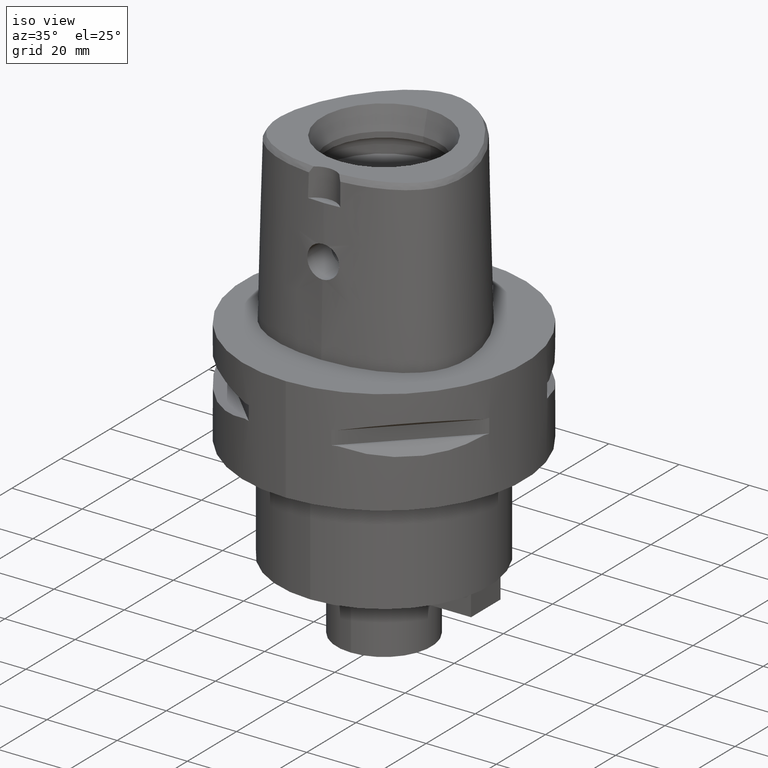
[diagram: clean part render]
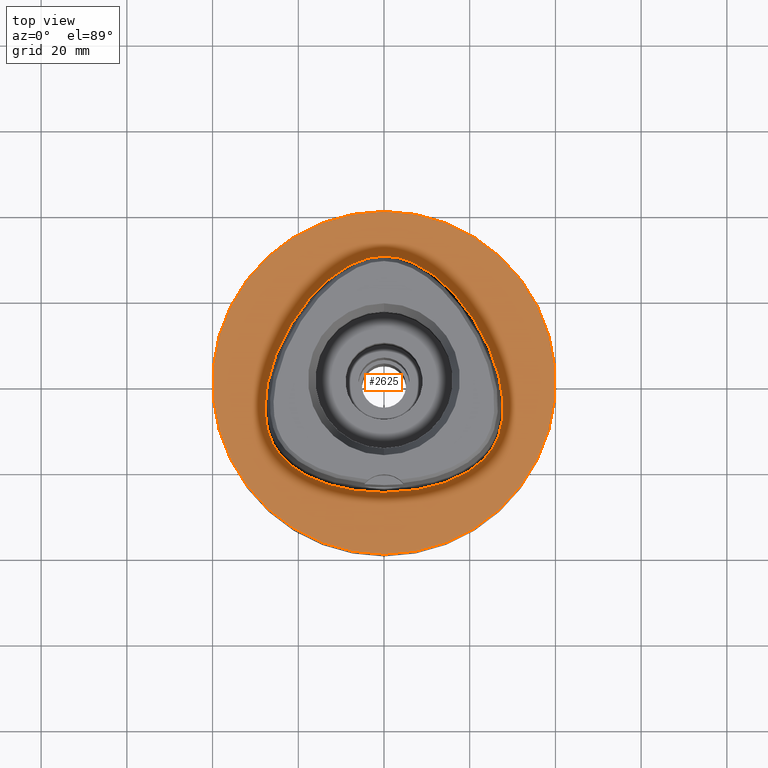
[diagram: tour spotlight — one face highlighted and labeled with its STEP entity id]
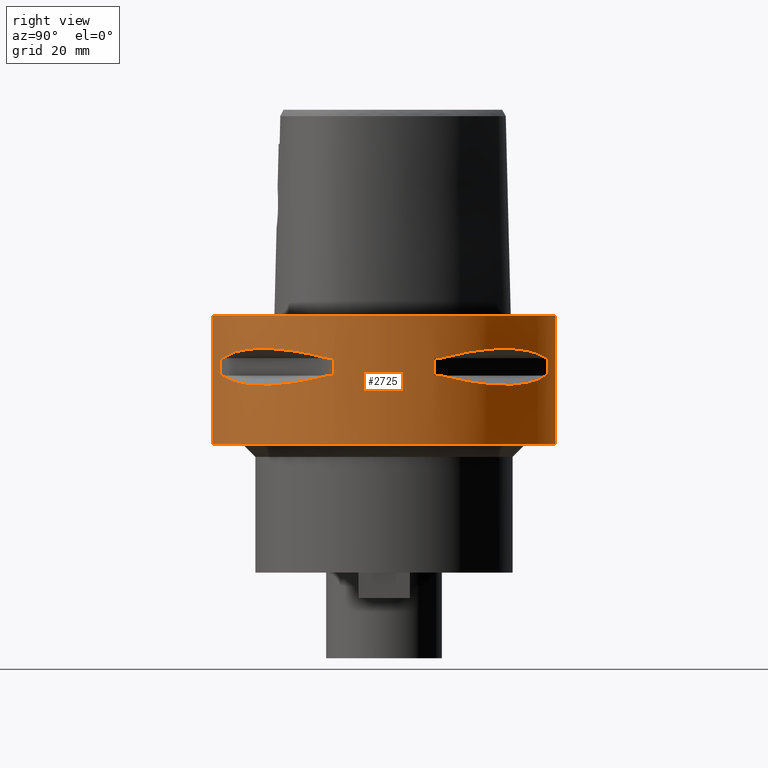
[diagram: tour spotlight — one face highlighted and labeled with its STEP entity id]
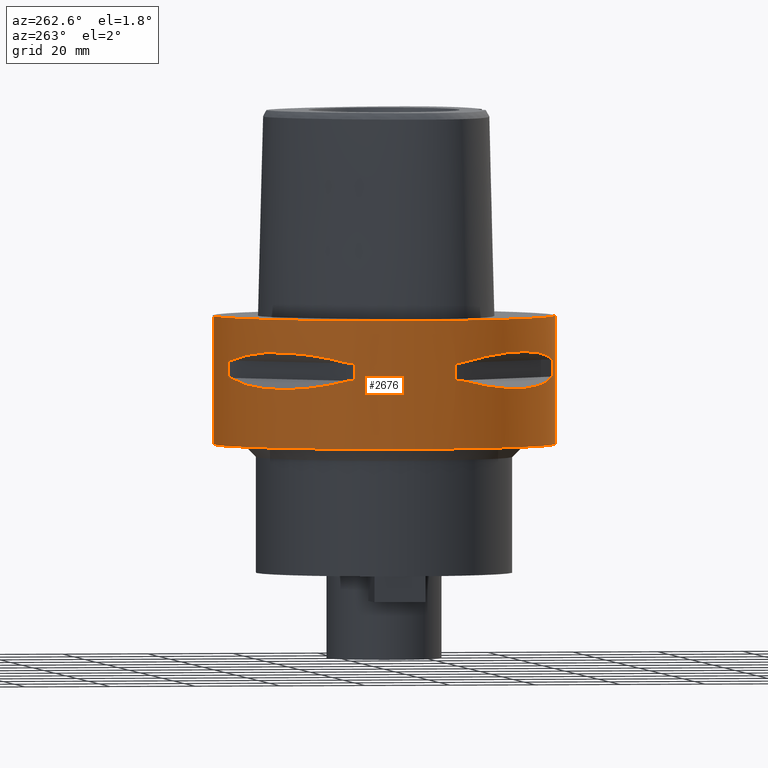
[diagram: tour spotlight — one face highlighted and labeled with its STEP entity id]
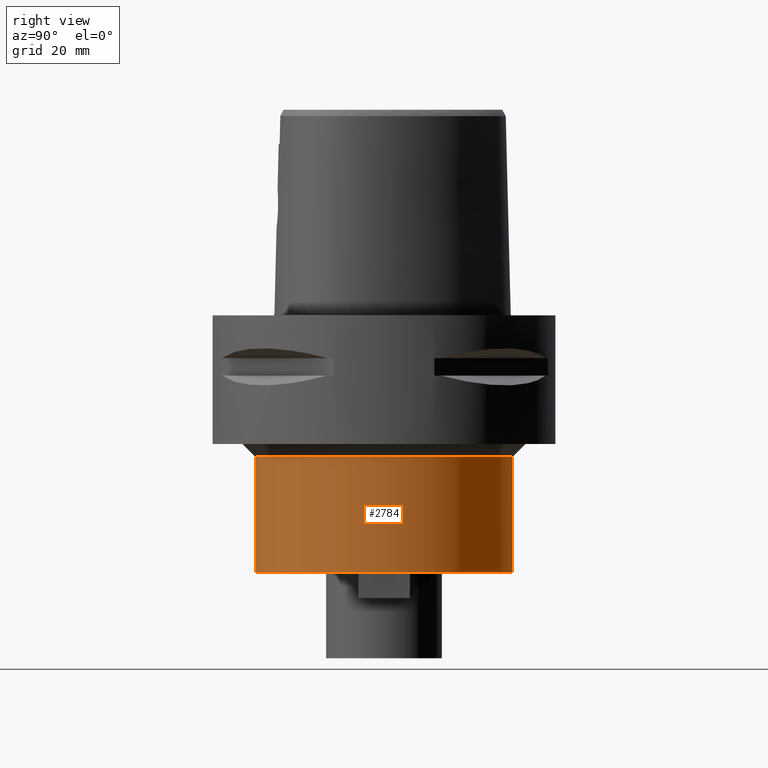
[diagram: tour spotlight — one face highlighted and labeled with its STEP entity id]
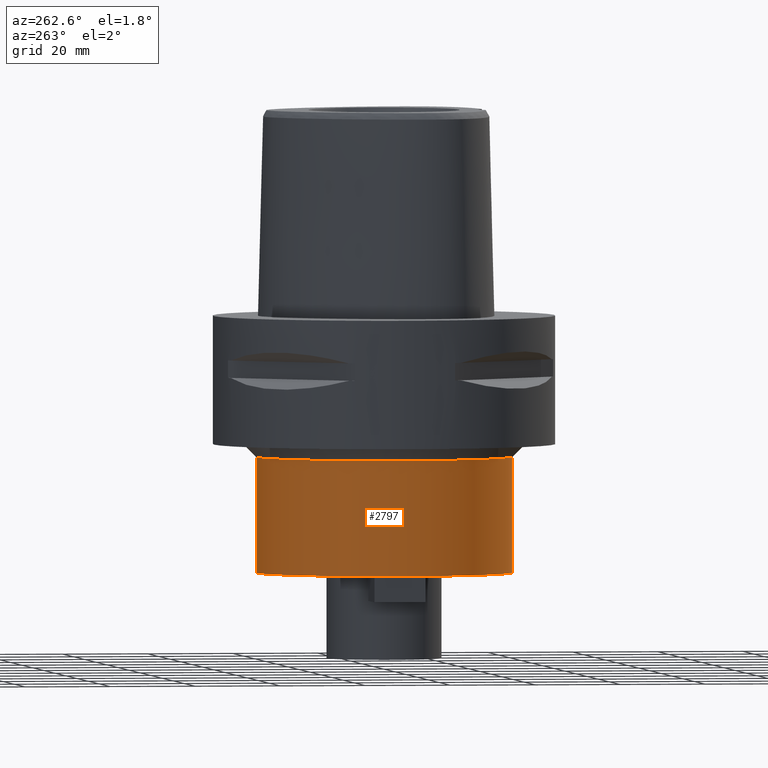
[diagram: tour spotlight — one face highlighted and labeled with its STEP entity id]
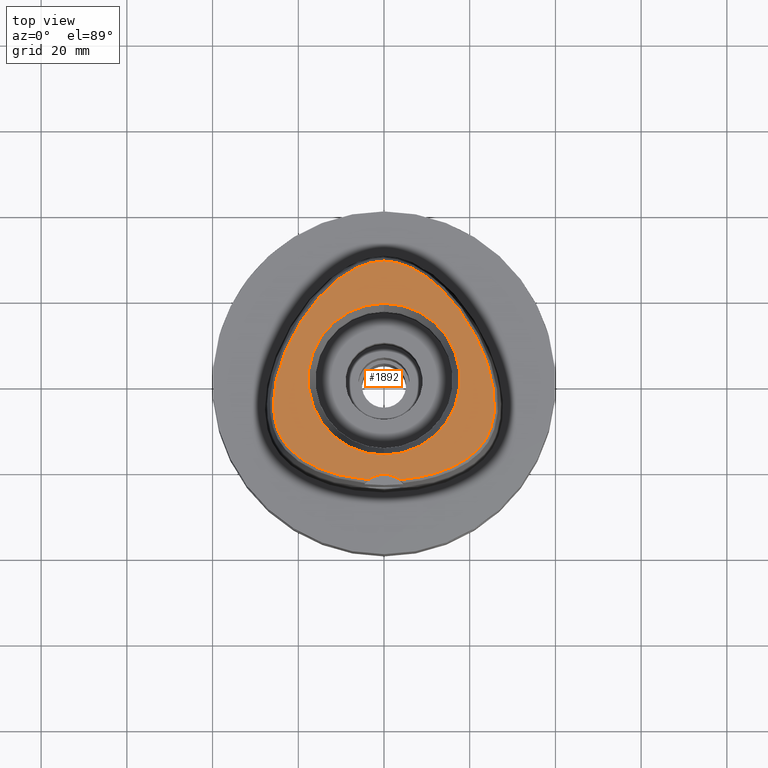
[diagram: tour spotlight — one face highlighted and labeled with its STEP entity id]
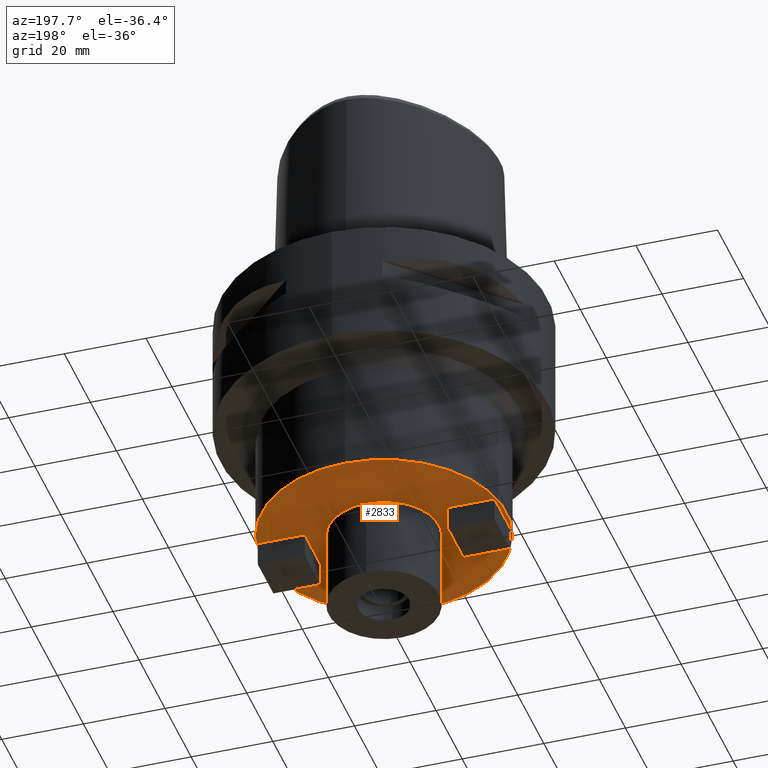
[diagram: tour spotlight — one face highlighted and labeled with its STEP entity id]
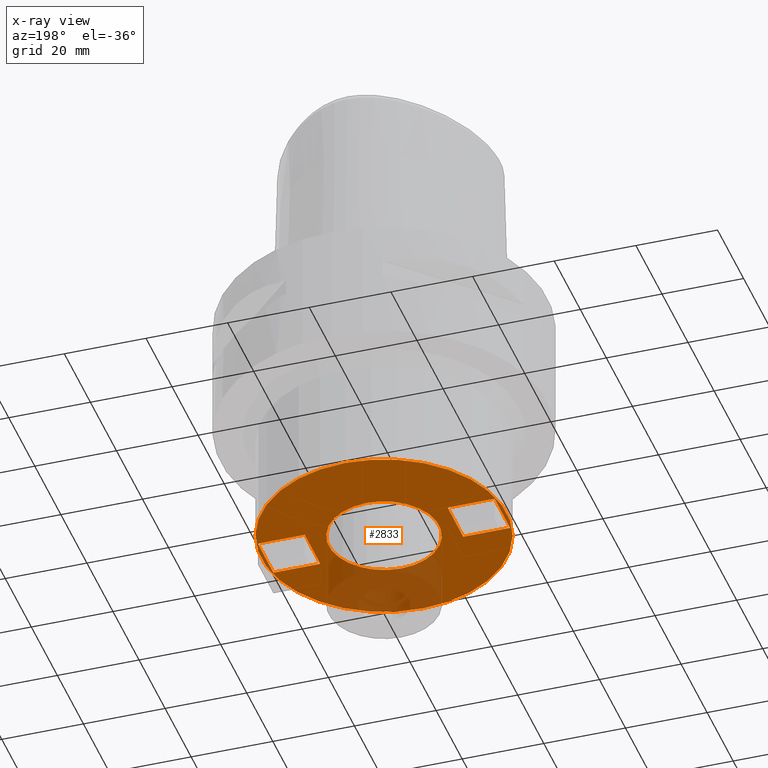
[diagram: x-ray of the same camera — body ghosted, this tour face saturated]
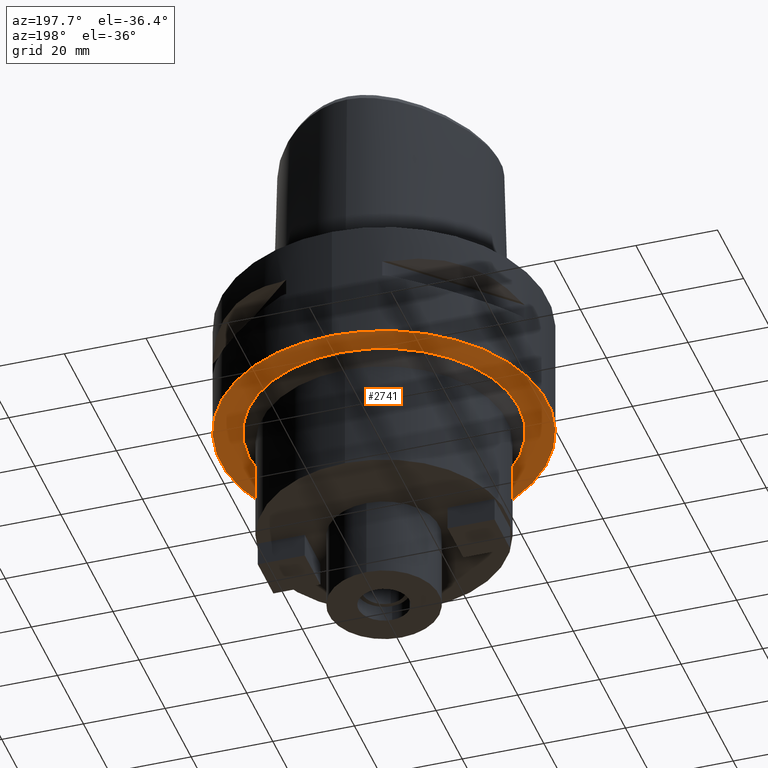
[diagram: tour spotlight — one face highlighted and labeled with its STEP entity id]
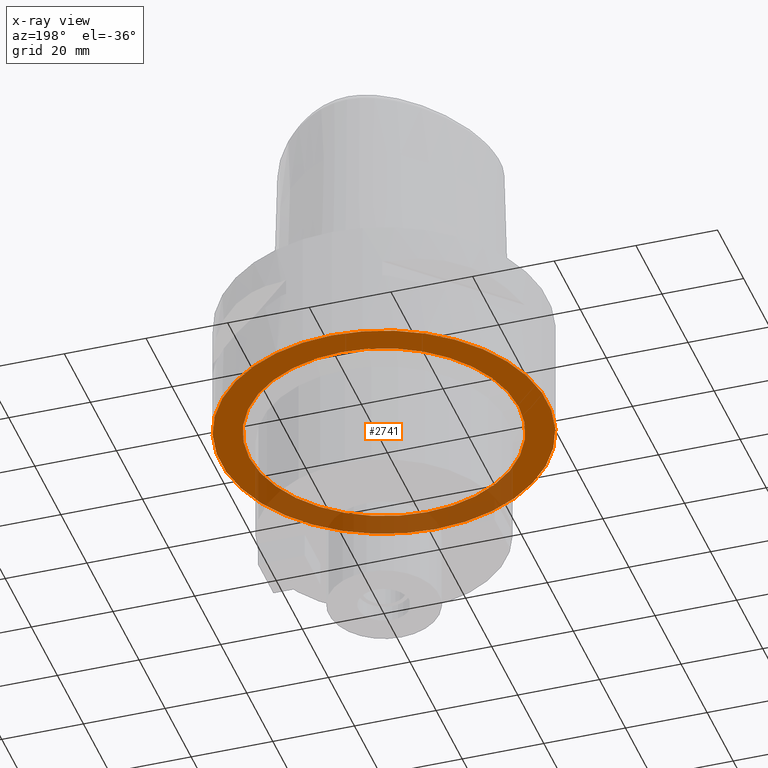
[diagram: x-ray of the same camera — body ghosted, this tour face saturated]
A machine part: a face-by-face anatomy tour. The part has 78 B-rep faces; the first image is the clean iso view, then the 8 largest visible faces are spotlighted one at a time (largest first), each with its STEP entity span.

Face 1 — top view, entity #2625. In plain terms, the highlighted planar face has unit normal (0, 0, -1).
Definition (entity closure, byte-faithful):
#298=CARTESIAN_POINT('',(0.E0,1.273632671113E-14,0.E0));
#299=DIRECTION('',(0.E0,0.E0,-1.E0));
#300=DIRECTION('',(0.E0,-1.E0,0.E0));
#301=AXIS2_PLACEMENT_3D('',#298,#299,#300);
#306=CARTESIAN_POINT('',(0.E0,1.273632671113E-14,0.E0));
#307=DIRECTION('',(0.E0,0.E0,-1.E0));
#308=DIRECTION('',(0.E0,1.E0,0.E0));
#309=AXIS2_PLACEMENT_3D('',#306,#307,#308);
#314=CARTESIAN_POINT('',(-1.821166908732E-11,-2.5575E1,1.153151648244E-13));
#315=CARTESIAN_POINT('',(1.192821055653E0,-2.5575E1,1.153151648244E-13));
#316=CARTESIAN_POINT('',(3.525349183996E0,-2.548902757929E1,
-5.351795424488E-14));
#317=CARTESIAN_POINT('',(6.912825310533E0,-2.511619650563E1,
1.434009262048E-14));
#318=CARTESIAN_POINT('',(1.004497187474E1,-2.453158542411E1,0.E0));
#319=CARTESIAN_POINT('',(1.287386432149E1,-2.377702036395E1,0.E0));
#320=CARTESIAN_POINT('',(1.537580079497E1,-2.289398296176E1,0.E0));
#321=CARTESIAN_POINT('',(1.755651859818E1,-2.191896893841E1,0.E0));
#322=CARTESIAN_POINT('',(1.943849972190E1,-2.087992687295E1,0.E0));
#323=CARTESIAN_POINT('',(2.105092828690E1,-1.979712690731E1,0.E0));
#324=CARTESIAN_POINT('',(2.242541425188E1,-1.868300201659E1,0.E0));
#325=CARTESIAN_POINT('',(2.359114088534E1,-1.754447305522E1,0.E0));
#326=CARTESIAN_POINT('',(2.457391972965E1,-1.638259768932E1,0.E0));
#327=CARTESIAN_POINT('',(2.539226795979E1,-1.520068025133E1,0.E0));
#328=CARTESIAN_POINT('',(2.607686790874E1,-1.396770442892E1,0.E0));
#329=CARTESIAN_POINT('',(2.665677134541E1,-1.263134999279E1,0.E0));
#330=CARTESIAN_POINT('',(2.713652433866E1,-1.115074177747E1,0.E0));
#331=CARTESIAN_POINT('',(2.749949214118E1,-9.519746786623E0,0.E0));
#332=CARTESIAN_POINT('',(2.773135370400E1,-7.711013373695E0,0.E0));
#333=CARTESIAN_POINT('',(2.780878948255E1,-5.704106805291E0,0.E0));
#334=CARTESIAN_POINT('',(2.770323774128E1,-3.479392949765E0,0.E0));
#335=CARTESIAN_POINT('',(2.738092654947E1,-1.023941730015E0,0.E0));
#336=CARTESIAN_POINT('',(2.680619403250E1,1.661468549130E0,0.E0));
#337=CARTESIAN_POINT('',(2.594661776994E1,4.556224488360E0,0.E0));
#338=CARTESIAN_POINT('',(2.478207501073E1,7.609749501166E0,0.E0));
#339=CARTESIAN_POINT('',(2.331405957827E1,1.074071968055E1,0.E0));
#340=CARTESIAN_POINT('',(2.157367796089E1,1.383978793574E1,0.E0));
#341=CARTESIAN_POINT('',(1.964081764451E1,1.675965873267E1,0.E0));
#342=CARTESIAN_POINT('',(1.759839452629E1,1.939955034533E1,0.E0));
#343=CARTESIAN_POINT('',(1.551965156199E1,2.170575678289E1,0.E0));
#344=CARTESIAN_POINT('',(1.346466472698E1,2.365959059104E1,0.E0));
#345=CARTESIAN_POINT('',(1.147344331622E1,2.527224900749E1,0.E0));
#346=CARTESIAN_POINT('',(9.569300574780E0,2.657103552176E1,0.E0));
#347=CARTESIAN_POINT('',(7.761227124125E0,2.759097920836E1,0.E0));
#348=CARTESIAN_POINT('',(6.048918873098E0,2.836735827590E1,0.E0));
#349=CARTESIAN_POINT('',(4.426415241299E0,2.893214918678E1,0.E0));
#350=CARTESIAN_POINT('',(2.883221972886E0,2.931237260070E1,1.353933006722E-14));
#351=CARTESIAN_POINT('',(1.410617579926E0,2.952903585589E1,
-5.052946771131E-14));
#352=CARTESIAN_POINT('',(4.637224935480E-1,2.957499999999E1,
1.088758712816E-13));
#353=CARTESIAN_POINT('',(4.150874539794E-11,2.957499999999E1,
1.088758712816E-13));
#358=CARTESIAN_POINT('',(4.150874539794E-11,2.957499999999E1,
1.088758712816E-13));
#359=CARTESIAN_POINT('',(-4.638164448012E-1,2.957499999999E1,
1.088758712816E-13));
#360=CARTESIAN_POINT('',(-1.410850718016E0,2.952902146816E1,
-5.052946771131E-14));
#361=CARTESIAN_POINT('',(-2.883655032481E0,2.931228560343E1,
1.353933006722E-14));
#362=CARTESIAN_POINT('',(-4.426627163545E0,2.893208071406E1,0.E0));
#363=CARTESIAN_POINT('',(-6.049154392441E0,2.836726648281E1,0.E0));
#364=CARTESIAN_POINT('',(-7.761537812028E0,2.759082579924E1,0.E0));
#365=CARTESIAN_POINT('',(-9.569857225665E0,2.657070258362E1,0.E0));
#366=CARTESIAN_POINT('',(-1.147438992791E1,2.527155800703E1,0.E0));
#367=CARTESIAN_POINT('',(-1.346593717634E1,2.365849032536E1,0.E0));
#368=CARTESIAN_POINT('',(-1.552126666491E1,2.170410428657E1,0.E0));
#369=CARTESIAN_POINT('',(-1.759995736461E1,1.939768070235E1,0.E0));
#370=CARTESIAN_POINT('',(-1.964233253222E1,1.675753018593E1,0.E0));
#371=CARTESIAN_POINT('',(-2.157509754225E1,1.383752572308E1,0.E0));
#372=CARTESIAN_POINT('',(-2.331611758430E1,1.073673744767E1,0.E0));
#373=CARTESIAN_POINT('',(-2.478320447143E1,7.607002331550E0,0.E0));
#374=CARTESIAN_POINT('',(-2.594735447195E1,4.554014363197E0,0.E0));
#375=CARTESIAN_POINT('',(-2.680648598444E1,1.660217498728E0,0.E0));
#376=CARTESIAN_POINT('',(-2.738097082383E1,-1.024310234966E0,0.E0));
#377=CARTESIAN_POINT('',(-2.770318656547E1,-3.479062889651E0,0.E0));
#378=CARTESIAN_POINT('',(-2.780877008059E1,-5.703091401496E0,0.E0));
#379=CARTESIAN_POINT('',(-2.773144522691E1,-7.709806855740E0,0.E0));
#380=CARTESIAN_POINT('',(-2.749972769728E1,-9.518401797713E0,0.E0));
#381=CARTESIAN_POINT('',(-2.713677167303E1,-1.114992061985E1,0.E0));
#382=CARTESIAN_POINT('',(-2.665684504343E1,-1.263118239016E1,0.E0));
#383=CARTESIAN_POINT('',(-2.607701356622E1,-1.396736842415E1,0.E0));
#384=CARTESIAN_POINT('',(-2.539313031375E1,-1.519910518181E1,0.E0));
#385=CARTESIAN_POINT('',(-2.457691319715E1,-1.637864995996E1,0.E0));
#386=CARTESIAN_POINT('',(-2.359382469479E1,-1.754163071958E1,0.E0));
#387=CARTESIAN_POINT('',(-2.242900785060E1,-1.867976950641E1,0.E0));
#388=CARTESIAN_POINT('',(-2.105518674326E1,-1.979399013524E1,0.E0));
#389=CARTESIAN_POINT('',(-1.944328869802E1,-2.087700749950E1,0.E0));
#390=CARTESIAN_POINT('',(-1.756163725760E1,-2.191645275900E1,0.E0));
#391=CARTESIAN_POINT('',(-1.538022871299E1,-2.289224369605E1,0.E0));
#392=CARTESIAN_POINT('',(-1.287818704661E1,-2.377571674426E1,0.E0));
#393=CARTESIAN_POINT('',(-1.004796888620E1,-2.453094412637E1,0.E0));
#394=CARTESIAN_POINT('',(-6.915125319542E0,-2.511588417376E1,
1.434009262048E-14));
#395=CARTESIAN_POINT('',(-3.526216737657E0,-2.548899742521E1,
-5.351795424488E-14));
#396=CARTESIAN_POINT('',(-1.193097080382E0,-2.5575E1,1.153151648244E-13));
#397=CARTESIAN_POINT('',(-1.821166908732E-11,-2.5575E1,1.153151648244E-13));
#1690=VERTEX_POINT('',#358);
#1691=VERTEX_POINT('',#397);
#1696=CARTESIAN_POINT('',(0.E0,-4.E1,0.E0));
#1697=CARTESIAN_POINT('',(0.E0,4.E1,0.E0));
#1698=VERTEX_POINT('',#1696);
#1699=VERTEX_POINT('',#1697);
#2609=CARTESIAN_POINT('',(0.E0,1.224646799147E-14,0.E0));
#2610=DIRECTION('',(0.E0,0.E0,-1.E0));
#2611=DIRECTION('',(0.E0,-1.E0,0.E0));
#2612=AXIS2_PLACEMENT_3D('',#2609,#2610,#2611);
#2613=PLANE('',#2612);
#2615=ORIENTED_EDGE('',*,*,#2614,.T.);
#2617=ORIENTED_EDGE('',*,*,#2616,.T.);
#2618=EDGE_LOOP('',(#2615,#2617));
#2619=FACE_OUTER_BOUND('',#2618,.F.);
#2621=ORIENTED_EDGE('',*,*,#2620,.T.);
#2622=ORIENTED_EDGE('',*,*,#2592,.T.);
#2623=EDGE_LOOP('',(#2621,#2622));
#2624=FACE_BOUND('',#2623,.F.);
#302=CIRCLE('',#301,4.E1);
#310=CIRCLE('',#309,4.E1);
#354=B_SPLINE_CURVE_WITH_KNOTS('',3,(#314,#315,#316,#317,#318,#319,#320,#321,
#322,#323,#324,#325,#326,#327,#328,#329,#330,#331,#332,#333,#334,#335,#336,#337,
#338,#339,#340,#341,#342,#343,#344,#345,#346,#347,#348,#349,#350,#351,#352,
#353),.UNSPECIFIED.,.F.,.F.,(4,1,1,1,1,1,1,1,1,1,1,1,1,1,1,1,1,1,1,1,1,1,1,1,1,
1,1,1,1,1,1,1,1,1,1,1,1,4),(0.E0,2.702702702703E-2,5.405405405405E-2,
8.108108108108E-2,1.081081081081E-1,1.351351351351E-1,1.621621621622E-1,
1.891891891892E-1,2.162162162162E-1,2.432432432432E-1,2.702702702703E-1,
2.972972972973E-1,3.243243243243E-1,3.513513513514E-1,3.783783783784E-1,
4.054054054054E-1,4.324324324324E-1,4.594594594595E-1,4.864864864865E-1,
5.135135135135E-1,5.405405405405E-1,5.675675675676E-1,5.945945945946E-1,
6.216216216216E-1,6.486486486486E-1,6.756756756757E-1,7.027027027027E-1,
7.297297297297E-1,7.567567567568E-1,7.837837837838E-1,8.108108108108E-1,
8.378378378378E-1,8.648648648649E-1,8.918918918919E-1,9.189189189189E-1,
9.459459459459E-1,9.729729729730E-1,1.E0),.UNSPECIFIED.);
#398=B_SPLINE_CURVE_WITH_KNOTS('',3,(#358,#359,#360,#361,#362,#363,#364,#365,
#366,#367,#368,#369,#370,#371,#372,#373,#374,#375,#376,#377,#378,#379,#380,#381,
#382,#383,#384,#385,#386,#387,#388,#389,#390,#391,#392,#393,#394,#395,#396,
#397),.UNSPECIFIED.,.F.,.F.,(4,1,1,1,1,1,1,1,1,1,1,1,1,1,1,1,1,1,1,1,1,1,1,1,1,
1,1,1,1,1,1,1,1,1,1,1,1,4),(0.E0,2.702702702703E-2,5.405405405405E-2,
8.108108108108E-2,1.081081081081E-1,1.351351351351E-1,1.621621621622E-1,
1.891891891892E-1,2.162162162162E-1,2.432432432432E-1,2.702702702703E-1,
2.972972972973E-1,3.243243243243E-1,3.513513513514E-1,3.783783783784E-1,
4.054054054054E-1,4.324324324324E-1,4.594594594595E-1,4.864864864865E-1,
5.135135135135E-1,5.405405405405E-1,5.675675675676E-1,5.945945945946E-1,
6.216216216216E-1,6.486486486486E-1,6.756756756757E-1,7.027027027027E-1,
7.297297297297E-1,7.567567567568E-1,7.837837837838E-1,8.108108108108E-1,
8.378378378378E-1,8.648648648649E-1,8.918918918919E-1,9.189189189189E-1,
9.459459459459E-1,9.729729729730E-1,1.E0),.UNSPECIFIED.);
#2592=EDGE_CURVE('',#1690,#1691,#398,.T.);
#2614=EDGE_CURVE('',#1698,#1699,#302,.T.);
#2616=EDGE_CURVE('',#1699,#1698,#310,.T.);
#2620=EDGE_CURVE('',#1691,#1690,#354,.T.);
#2625=ADVANCED_FACE('',(#2619,#2624),#2613,.F.);

Face 2 — right view, entity #2725. In plain terms, the highlighted cylindrical surface (partial cylindrical patch) has radius 40 mm, axis along (0, 0, -1).
Definition (entity closure, byte-faithful):
#306=CARTESIAN_POINT('',(0.E0,1.273632671113E-14,0.E0));
#307=DIRECTION('',(0.E0,0.E0,-1.E0));
#308=DIRECTION('',(0.E0,1.E0,0.E0));
#309=AXIS2_PLACEMENT_3D('',#306,#307,#308);
#402=DIRECTION('',(0.E0,0.E0,-1.E0));
#403=VECTOR('',#402,3.E1);
#404=CARTESIAN_POINT('',(0.E0,-4.E1,0.E0));
#405=LINE('',#404,#403);
#459=DIRECTION('',(0.E0,0.E0,-1.E0));
#460=VECTOR('',#459,3.E1);
#461=CARTESIAN_POINT('',(0.E0,4.E1,0.E0));
#462=LINE('',#461,#460);
#466=DIRECTION('',(0.E0,0.E0,-1.E0));
#467=VECTOR('',#466,4.1E0);
#468=CARTESIAN_POINT('',(1.176033600281E1,-3.823211342708E1,-9.95E0));
#469=LINE('',#468,#467);
#473=CARTESIAN_POINT('',(1.323717311056E1,-3.774622163927E1,-1.405E1));
#474=CARTESIAN_POINT('',(1.626143876435E1,-3.668564587161E1,-1.485167303901E1));
#475=CARTESIAN_POINT('',(2.171906657626E1,-3.397359084062E1,-1.597254843317E1));
#476=CARTESIAN_POINT('',(2.850324251697E1,-2.850324251697E1,-1.650891631180E1));
#477=CARTESIAN_POINT('',(3.397359084062E1,-2.171906657626E1,-1.597254843317E1));
#478=CARTESIAN_POINT('',(3.668564587161E1,-1.626143876435E1,-1.485167303901E1));
#479=CARTESIAN_POINT('',(3.774622163927E1,-1.323717311056E1,-1.405E1));
#484=DIRECTION('',(0.E0,0.E0,1.E0));
#485=VECTOR('',#484,4.1E0);
#486=CARTESIAN_POINT('',(3.823211342708E1,-1.176033600281E1,-1.405E1));
#487=LINE('',#486,#485);
#491=DIRECTION('',(0.E0,0.E0,-1.E0));
#492=VECTOR('',#491,4.1E0);
#493=CARTESIAN_POINT('',(3.823211342708E1,1.176033600281E1,-9.95E0));
#494=LINE('',#493,#492);
#498=CARTESIAN_POINT('',(3.774622163927E1,1.323717311056E1,-1.405E1));
#499=CARTESIAN_POINT('',(3.668564587161E1,1.626143876435E1,-1.485167303901E1));
#500=CARTESIAN_POINT('',(3.397359084062E1,2.171906657626E1,-1.597254843317E1));
#501=CARTESIAN_POINT('',(2.850324251697E1,2.850324251697E1,-1.650891631180E1));
#502=CARTESIAN_POINT('',(2.171906657626E1,3.397359084062E1,-1.597254843317E1));
#503=CARTESIAN_POINT('',(1.626143876435E1,3.668564587161E1,-1.485167303901E1));
#504=CARTESIAN_POINT('',(1.323717311056E1,3.774622163927E1,-1.405E1));
#509=DIRECTION('',(0.E0,0.E0,1.E0));
#510=VECTOR('',#509,4.1E0);
#511=CARTESIAN_POINT('',(1.176033600281E1,3.823211342708E1,-1.405E1));
#512=LINE('',#511,#510);
#516=CARTESIAN_POINT('',(0.E0,1.273632671113E-14,-3.E1));
#517=DIRECTION('',(0.E0,0.E0,1.E0));
#518=DIRECTION('',(0.E0,-1.E0,0.E0));
#519=AXIS2_PLACEMENT_3D('',#516,#517,#518);
#1390=CARTESIAN_POINT('',(1.323717311056E1,-3.774622163927E1,
-9.950000000002E0));
#1391=CARTESIAN_POINT('',(1.626143876435E1,-3.668564587161E1,
-9.148326960991E0));
#1392=CARTESIAN_POINT('',(2.171906657626E1,-3.397359084062E1,
-8.027451566833E0));
#1393=CARTESIAN_POINT('',(2.850324251697E1,-2.850324251697E1,
-7.491083688204E0));
#1394=CARTESIAN_POINT('',(3.397359084062E1,-2.171906657626E1,
-8.027451566833E0));
#1395=CARTESIAN_POINT('',(3.668564587161E1,-1.626143876435E1,
-9.148326960991E0));
#1396=CARTESIAN_POINT('',(3.774622163927E1,-1.323717311056E1,
-9.950000000002E0));
#1401=CARTESIAN_POINT('',(0.E0,1.273632671113E-14,-9.95E0));
#1402=DIRECTION('',(0.E0,0.E0,1.E0));
#1403=DIRECTION('',(9.436555409818E-1,-3.309293277639E-1,0.E0));
#1404=AXIS2_PLACEMENT_3D('',#1401,#1402,#1403);
#1409=CARTESIAN_POINT('',(0.E0,1.273632671113E-14,-9.95E0));
#1410=DIRECTION('',(0.E0,0.E0,1.E0));
#1411=DIRECTION('',(2.940084000703E-1,-9.558028356770E-1,0.E0));
#1412=AXIS2_PLACEMENT_3D('',#1409,#1410,#1411);
#1431=CARTESIAN_POINT('',(0.E0,1.273632671113E-14,-1.405E1));
#1432=DIRECTION('',(0.E0,0.E0,-1.E0));
#1433=DIRECTION('',(9.558028356770E-1,-2.940084000703E-1,0.E0));
#1434=AXIS2_PLACEMENT_3D('',#1431,#1432,#1433);
#1439=CARTESIAN_POINT('',(0.E0,1.273632671113E-14,-1.405E1));
#1440=DIRECTION('',(0.E0,0.E0,-1.E0));
#1441=DIRECTION('',(3.309293277639E-1,-9.436555409818E-1,0.E0));
#1442=AXIS2_PLACEMENT_3D('',#1439,#1440,#1441);
#1461=CARTESIAN_POINT('',(3.774622163927E1,1.323717311056E1,-9.950000000002E0));
#1462=CARTESIAN_POINT('',(3.668564587161E1,1.626143876435E1,-9.148326960991E0));
#1463=CARTESIAN_POINT('',(3.397359084062E1,2.171906657626E1,-8.027451566833E0));
#1464=CARTESIAN_POINT('',(2.850324251697E1,2.850324251697E1,-7.491083688204E0));
#1465=CARTESIAN_POINT('',(2.171906657626E1,3.397359084062E1,-8.027451566833E0));
#1466=CARTESIAN_POINT('',(1.626143876435E1,3.668564587161E1,-9.148326960991E0));
#1467=CARTESIAN_POINT('',(1.323717311056E1,3.774622163927E1,-9.950000000002E0));
#1472=CARTESIAN_POINT('',(0.E0,1.273632671113E-14,-9.95E0));
#1473=DIRECTION('',(0.E0,0.E0,1.E0));
#1474=DIRECTION('',(3.309293277639E-1,9.436555409818E-1,0.E0));
#1475=AXIS2_PLACEMENT_3D('',#1472,#1473,#1474);
#1480=CARTESIAN_POINT('',(0.E0,1.273632671113E-14,-9.95E0));
#1481=DIRECTION('',(0.E0,0.E0,1.E0));
#1482=DIRECTION('',(9.558028356770E-1,2.940084000703E-1,0.E0));
#1483=AXIS2_PLACEMENT_3D('',#1480,#1481,#1482);
#1502=CARTESIAN_POINT('',(0.E0,1.273632671113E-14,-1.405E1));
#1503=DIRECTION('',(0.E0,0.E0,-1.E0));
#1504=DIRECTION('',(2.940084000703E-1,9.558028356770E-1,0.E0));
#1505=AXIS2_PLACEMENT_3D('',#1502,#1503,#1504);
#1510=CARTESIAN_POINT('',(0.E0,1.273632671113E-14,-1.405E1));
#1511=DIRECTION('',(0.E0,0.E0,-1.E0));
#1512=DIRECTION('',(9.436555409818E-1,3.309293277639E-1,0.E0));
#1513=AXIS2_PLACEMENT_3D('',#1510,#1511,#1512);
#1696=CARTESIAN_POINT('',(0.E0,-4.E1,0.E0));
#1697=CARTESIAN_POINT('',(0.E0,4.E1,0.E0));
#1698=VERTEX_POINT('',#1696);
#1699=VERTEX_POINT('',#1697);
#1700=CARTESIAN_POINT('',(0.E0,4.E1,-3.E1));
#1701=VERTEX_POINT('',#1700);
#1702=CARTESIAN_POINT('',(0.E0,-4.E1,-3.E1));
#1703=VERTEX_POINT('',#1702);
#1730=VERTEX_POINT('',#1390);
#1731=VERTEX_POINT('',#1396);
#1732=CARTESIAN_POINT('',(1.176033600281E1,-3.823211342708E1,-9.95E0));
#1733=VERTEX_POINT('',#1732);
#1734=CARTESIAN_POINT('',(1.176033600281E1,-3.823211342708E1,-1.405E1));
#1735=VERTEX_POINT('',#1734);
#1736=CARTESIAN_POINT('',(1.323717311056E1,-3.774622163927E1,-1.405E1));
#1737=VERTEX_POINT('',#1736);
#1738=VERTEX_POINT('',#479);
#1739=CARTESIAN_POINT('',(3.823211342708E1,-1.176033600281E1,-1.405E1));
#1740=VERTEX_POINT('',#1739);
#1741=CARTESIAN_POINT('',(3.823211342708E1,-1.176033600281E1,-9.95E0));
#1742=VERTEX_POINT('',#1741);
#1743=VERTEX_POINT('',#1461);
#1744=VERTEX_POINT('',#1467);
#1745=CARTESIAN_POINT('',(3.823211342708E1,1.176033600281E1,-9.95E0));
#1746=VERTEX_POINT('',#1745);
#1747=CARTESIAN_POINT('',(3.823211342708E1,1.176033600281E1,-1.405E1));
#1748=VERTEX_POINT('',#1747);
#1749=CARTESIAN_POINT('',(3.774622163927E1,1.323717311056E1,-1.405E1));
#1750=VERTEX_POINT('',#1749);
#1751=VERTEX_POINT('',#504);
#1752=CARTESIAN_POINT('',(1.176033600281E1,3.823211342708E1,-1.405E1));
#1753=VERTEX_POINT('',#1752);
#1754=CARTESIAN_POINT('',(1.176033600281E1,3.823211342708E1,-9.95E0));
#1755=VERTEX_POINT('',#1754);
#2677=CARTESIAN_POINT('',(0.E0,1.273632671113E-14,4.E0));
#2678=DIRECTION('',(0.E0,0.E0,-1.E0));
#2679=DIRECTION('',(0.E0,-1.E0,0.E0));
#2680=AXIS2_PLACEMENT_3D('',#2677,#2678,#2679);
#2681=CYLINDRICAL_SURFACE('',#2680,4.E1);
#2682=ORIENTED_EDGE('',*,*,#2631,.T.);
#2684=ORIENTED_EDGE('',*,*,#2683,.F.);
#2685=ORIENTED_EDGE('',*,*,#2634,.F.);
#2686=ORIENTED_EDGE('',*,*,#2616,.F.);
#2687=EDGE_LOOP('',(#2682,#2684,#2685,#2686));
#2688=FACE_OUTER_BOUND('',#2687,.F.);
#2690=ORIENTED_EDGE('',*,*,#2689,.F.);
#2692=ORIENTED_EDGE('',*,*,#2691,.F.);
#2694=ORIENTED_EDGE('',*,*,#2693,.T.);
#2696=ORIENTED_EDGE('',*,*,#2695,.F.);
#2698=ORIENTED_EDGE('',*,*,#2697,.T.);
#2700=ORIENTED_EDGE('',*,*,#2699,.F.);
#2702=ORIENTED_EDGE('',*,*,#2701,.T.);
#2704=ORIENTED_EDGE('',*,*,#2703,.F.);
#2705=EDGE_LOOP('',(#2690,#2692,#2694,#2696,#2698,#2700,#2702,#2704));
#2706=FACE_BOUND('',#2705,.F.);
#2708=ORIENTED_EDGE('',*,*,#2707,.F.);
#2710=ORIENTED_EDGE('',*,*,#2709,.F.);
#2712=ORIENTED_EDGE('',*,*,#2711,.T.);
#2714=ORIENTED_EDGE('',*,*,#2713,.F.);
#2716=ORIENTED_EDGE('',*,*,#2715,.T.);
#2718=ORIENTED_EDGE('',*,*,#2717,.F.);
#2720=ORIENTED_EDGE('',*,*,#2719,.T.);
#2722=ORIENTED_EDGE('',*,*,#2721,.F.);
#2723=EDGE_LOOP('',(#2708,#2710,#2712,#2714,#2716,#2718,#2720,#2722));
#2724=FACE_BOUND('',#2723,.F.);
#310=CIRCLE('',#309,4.E1);
#480=B_SPLINE_CURVE_WITH_KNOTS('',3,(#473,#474,#475,#476,#477,#478,#479),
.UNSPECIFIED.,.F.,.F.,(4,1,1,1,4),(0.E0,2.5E-1,5.E-1,7.5E-1,1.E0),
.UNSPECIFIED.);
#505=B_SPLINE_CURVE_WITH_KNOTS('',3,(#498,#499,#500,#501,#502,#503,#504),
.UNSPECIFIED.,.F.,.F.,(4,1,1,1,4),(0.E0,2.5E-1,5.E-1,7.5E-1,1.E0),
.UNSPECIFIED.);
#520=CIRCLE('',#519,4.E1);
#1397=B_SPLINE_CURVE_WITH_KNOTS('',3,(#1390,#1391,#1392,#1393,#1394,#1395,
#1396),.UNSPECIFIED.,.F.,.F.,(4,1,1,1,4),(0.E0,2.5E-1,5.E-1,7.5E-1,1.E0),
.UNSPECIFIED.);
#1405=CIRCLE('',#1404,4.E1);
#1413=CIRCLE('',#1412,4.E1);
#1435=CIRCLE('',#1434,4.E1);
#1443=CIRCLE('',#1442,4.E1);
#1468=B_SPLINE_CURVE_WITH_KNOTS('',3,(#1461,#1462,#1463,#1464,#1465,#1466,
#1467),.UNSPECIFIED.,.F.,.F.,(4,1,1,1,4),(0.E0,2.5E-1,5.E-1,7.5E-1,1.E0),
.UNSPECIFIED.);
#1476=CIRCLE('',#1475,4.E1);
#1484=CIRCLE('',#1483,4.E1);
#1506=CIRCLE('',#1505,4.E1);
#1514=CIRCLE('',#1513,4.E1);
#2616=EDGE_CURVE('',#1699,#1698,#310,.T.);
#2631=EDGE_CURVE('',#1699,#1701,#462,.T.);
#2634=EDGE_CURVE('',#1698,#1703,#405,.T.);
#2683=EDGE_CURVE('',#1703,#1701,#520,.T.);
#2689=EDGE_CURVE('',#1730,#1731,#1397,.T.);
#2691=EDGE_CURVE('',#1733,#1730,#1413,.T.);
#2693=EDGE_CURVE('',#1733,#1735,#469,.T.);
#2695=EDGE_CURVE('',#1737,#1735,#1443,.T.);
#2697=EDGE_CURVE('',#1737,#1738,#480,.T.);
#2699=EDGE_CURVE('',#1740,#1738,#1435,.T.);
#2701=EDGE_CURVE('',#1740,#1742,#487,.T.);
#2703=EDGE_CURVE('',#1731,#1742,#1405,.T.);
#2707=EDGE_CURVE('',#1743,#1744,#1468,.T.);
#2709=EDGE_CURVE('',#1746,#1743,#1484,.T.);
#2711=EDGE_CURVE('',#1746,#1748,#494,.T.);
#2713=EDGE_CURVE('',#1750,#1748,#1514,.T.);
#2715=EDGE_CURVE('',#1750,#1751,#505,.T.);
#2717=EDGE_CURVE('',#1753,#1751,#1506,.T.);
#2719=EDGE_CURVE('',#1753,#1755,#512,.T.);
#2721=EDGE_CURVE('',#1744,#1755,#1476,.T.);
#2725=ADVANCED_FACE('',(#2688,#2706,#2724),#2681,.T.);

Face 3 — auxiliary view, entity #2676. In plain terms, the highlighted cylindrical surface (partial cylindrical patch) has radius 40 mm, axis along (0, 0, -1).
Definition (entity closure, byte-faithful):
#298=CARTESIAN_POINT('',(0.E0,1.273632671113E-14,0.E0));
#299=DIRECTION('',(0.E0,0.E0,-1.E0));
#300=DIRECTION('',(0.E0,-1.E0,0.E0));
#301=AXIS2_PLACEMENT_3D('',#298,#299,#300);
#402=DIRECTION('',(0.E0,0.E0,-1.E0));
#403=VECTOR('',#402,3.E1);
#404=CARTESIAN_POINT('',(0.E0,-4.E1,0.E0));
#405=LINE('',#404,#403);
#409=DIRECTION('',(0.E0,0.E0,-1.E0));
#410=VECTOR('',#409,4.1E0);
#411=CARTESIAN_POINT('',(-1.176033600281E1,3.823211342708E1,-9.95E0));
#412=LINE('',#411,#410);
#416=CARTESIAN_POINT('',(-1.323717311056E1,3.774622163927E1,-1.405E1));
#417=CARTESIAN_POINT('',(-1.626143876435E1,3.668564587161E1,-1.485167303901E1));
#418=CARTESIAN_POINT('',(-2.171906657626E1,3.397359084062E1,-1.597254843317E1));
#419=CARTESIAN_POINT('',(-2.850324251697E1,2.850324251697E1,-1.650891631180E1));
#420=CARTESIAN_POINT('',(-3.397359084062E1,2.171906657626E1,-1.597254843317E1));
#421=CARTESIAN_POINT('',(-3.668564587161E1,1.626143876435E1,-1.485167303901E1));
#422=CARTESIAN_POINT('',(-3.774622163927E1,1.323717311056E1,-1.405E1));
#427=DIRECTION('',(0.E0,0.E0,1.E0));
#428=VECTOR('',#427,4.1E0);
#429=CARTESIAN_POINT('',(-3.823211342708E1,1.176033600281E1,-1.405E1));
#430=LINE('',#429,#428);
#434=DIRECTION('',(0.E0,0.E0,-1.E0));
#435=VECTOR('',#434,4.1E0);
#436=CARTESIAN_POINT('',(-3.823211342708E1,-1.176033600281E1,-9.95E0));
#437=LINE('',#436,#435);
#441=CARTESIAN_POINT('',(-3.774622163927E1,-1.323717311056E1,-1.405E1));
#442=CARTESIAN_POINT('',(-3.668564587161E1,-1.626143876435E1,
-1.485167303901E1));
#443=CARTESIAN_POINT('',(-3.397359084062E1,-2.171906657626E1,
-1.597254843317E1));
#444=CARTESIAN_POINT('',(-2.850324251697E1,-2.850324251697E1,
-1.650891631180E1));
#445=CARTESIAN_POINT('',(-2.171906657626E1,-3.397359084062E1,
-1.597254843317E1));
#446=CARTESIAN_POINT('',(-1.626143876435E1,-3.668564587161E1,
-1.485167303901E1));
#447=CARTESIAN_POINT('',(-1.323717311056E1,-3.774622163927E1,-1.405E1));
#452=DIRECTION('',(0.E0,0.E0,1.E0));
#453=VECTOR('',#452,4.1E0);
#454=CARTESIAN_POINT('',(-1.176033600281E1,-3.823211342708E1,-1.405E1));
#455=LINE('',#454,#453);
#459=DIRECTION('',(0.E0,0.E0,-1.E0));
#460=VECTOR('',#459,3.E1);
#461=CARTESIAN_POINT('',(0.E0,4.E1,0.E0));
#462=LINE('',#461,#460);
#524=CARTESIAN_POINT('',(0.E0,1.273632671113E-14,-3.E1));
#525=DIRECTION('',(0.E0,0.E0,1.E0));
#526=DIRECTION('',(0.E0,1.E0,0.E0));
#527=AXIS2_PLACEMENT_3D('',#524,#525,#526);
#1532=CARTESIAN_POINT('',(-1.323717311056E1,3.774622163927E1,
-9.950000000002E0));
#1533=CARTESIAN_POINT('',(-1.626143876435E1,3.668564587161E1,
-9.148326960991E0));
#1534=CARTESIAN_POINT('',(-2.171906657626E1,3.397359084062E1,
-8.027451566833E0));
#1535=CARTESIAN_POINT('',(-2.850324251697E1,2.850324251697E1,
-7.491083688204E0));
#1536=CARTESIAN_POINT('',(-3.397359084062E1,2.171906657626E1,
-8.027451566833E0));
#1537=CARTESIAN_POINT('',(-3.668564587161E1,1.626143876435E1,
-9.148326960991E0));
#1538=CARTESIAN_POINT('',(-3.774622163927E1,1.323717311056E1,
-9.950000000002E0));
#1543=CARTESIAN_POINT('',(0.E0,1.273632671113E-14,-9.95E0));
#1544=DIRECTION('',(0.E0,0.E0,1.E0));
#1545=DIRECTION('',(-9.436555409818E-1,3.309293277639E-1,0.E0));
#1546=AXIS2_PLACEMENT_3D('',#1543,#1544,#1545);
#1551=CARTESIAN_POINT('',(0.E0,1.273632671113E-14,-9.95E0));
#1552=DIRECTION('',(0.E0,0.E0,1.E0));
#1553=DIRECTION('',(-2.940084000703E-1,9.558028356770E-1,0.E0));
#1554=AXIS2_PLACEMENT_3D('',#1551,#1552,#1553);
#1573=CARTESIAN_POINT('',(0.E0,1.273632671113E-14,-1.405E1));
#1574=DIRECTION('',(0.E0,0.E0,-1.E0));
#1575=DIRECTION('',(-9.558028356770E-1,2.940084000703E-1,0.E0));
#1576=AXIS2_PLACEMENT_3D('',#1573,#1574,#1575);
#1581=CARTESIAN_POINT('',(0.E0,1.273632671113E-14,-1.405E1));
#1582=DIRECTION('',(0.E0,0.E0,-1.E0));
#1583=DIRECTION('',(-3.309293277639E-1,9.436555409818E-1,0.E0));
#1584=AXIS2_PLACEMENT_3D('',#1581,#1582,#1583);
#1603=CARTESIAN_POINT('',(-3.774622163927E1,-1.323717311056E1,
-9.950000000002E0));
#1604=CARTESIAN_POINT('',(-3.668564587161E1,-1.626143876435E1,
-9.148326960991E0));
#1605=CARTESIAN_POINT('',(-3.397359084062E1,-2.171906657626E1,
-8.027451566833E0));
#1606=CARTESIAN_POINT('',(-2.850324251697E1,-2.850324251697E1,
-7.491083688204E0));
#1607=CARTESIAN_POINT('',(-2.171906657626E1,-3.397359084062E1,
-8.027451566833E0));
#1608=CARTESIAN_POINT('',(-1.626143876435E1,-3.668564587161E1,
-9.148326960991E0));
#1609=CARTESIAN_POINT('',(-1.323717311056E1,-3.774622163927E1,
-9.950000000002E0));
#1614=CARTESIAN_POINT('',(0.E0,1.273632671113E-14,-9.95E0));
#1615=DIRECTION('',(0.E0,0.E0,1.E0));
#1616=DIRECTION('',(-3.309293277639E-1,-9.436555409818E-1,0.E0));
#1617=AXIS2_PLACEMENT_3D('',#1614,#1615,#1616);
#1622=CARTESIAN_POINT('',(0.E0,1.273632671113E-14,-9.95E0));
#1623=DIRECTION('',(0.E0,0.E0,1.E0));
#1624=DIRECTION('',(-9.558028356770E-1,-2.940084000703E-1,0.E0));
#1625=AXIS2_PLACEMENT_3D('',#1622,#1623,#1624);
#1644=CARTESIAN_POINT('',(0.E0,1.273632671113E-14,-1.405E1));
#1645=DIRECTION('',(0.E0,0.E0,-1.E0));
#1646=DIRECTION('',(-2.940084000703E-1,-9.558028356770E-1,0.E0));
#1647=AXIS2_PLACEMENT_3D('',#1644,#1645,#1646);
#1652=CARTESIAN_POINT('',(0.E0,1.273632671113E-14,-1.405E1));
#1653=DIRECTION('',(0.E0,0.E0,-1.E0));
#1654=DIRECTION('',(-9.436555409818E-1,-3.309293277639E-1,0.E0));
#1655=AXIS2_PLACEMENT_3D('',#1652,#1653,#1654);
#1696=CARTESIAN_POINT('',(0.E0,-4.E1,0.E0));
#1697=CARTESIAN_POINT('',(0.E0,4.E1,0.E0));
#1698=VERTEX_POINT('',#1696);
#1699=VERTEX_POINT('',#1697);
#1700=CARTESIAN_POINT('',(0.E0,4.E1,-3.E1));
#1701=VERTEX_POINT('',#1700);
#1702=CARTESIAN_POINT('',(0.E0,-4.E1,-3.E1));
#1703=VERTEX_POINT('',#1702);
#1704=VERTEX_POINT('',#1532);
#1705=VERTEX_POINT('',#1538);
#1706=CARTESIAN_POINT('',(-1.176033600281E1,3.823211342708E1,-9.95E0));
#1707=VERTEX_POINT('',#1706);
#1708=CARTESIAN_POINT('',(-1.176033600281E1,3.823211342708E1,-1.405E1));
#1709=VERTEX_POINT('',#1708);
#1710=CARTESIAN_POINT('',(-1.323717311056E1,3.774622163927E1,-1.405E1));
#1711=VERTEX_POINT('',#1710);
#1712=VERTEX_POINT('',#422);
#1713=CARTESIAN_POINT('',(-3.823211342708E1,1.176033600281E1,-1.405E1));
#1714=VERTEX_POINT('',#1713);
#1715=CARTESIAN_POINT('',(-3.823211342708E1,1.176033600281E1,-9.95E0));
#1716=VERTEX_POINT('',#1715);
#1717=VERTEX_POINT('',#1603);
#1718=VERTEX_POINT('',#1609);
#1719=CARTESIAN_POINT('',(-3.823211342708E1,-1.176033600281E1,-9.95E0));
#1720=VERTEX_POINT('',#1719);
#1721=CARTESIAN_POINT('',(-3.823211342708E1,-1.176033600281E1,-1.405E1));
#1722=VERTEX_POINT('',#1721);
#1723=CARTESIAN_POINT('',(-3.774622163927E1,-1.323717311056E1,-1.405E1));
#1724=VERTEX_POINT('',#1723);
#1725=VERTEX_POINT('',#447);
#1726=CARTESIAN_POINT('',(-1.176033600281E1,-3.823211342708E1,-1.405E1));
#1727=VERTEX_POINT('',#1726);
#1728=CARTESIAN_POINT('',(-1.176033600281E1,-3.823211342708E1,-9.95E0));
#1729=VERTEX_POINT('',#1728);
#2626=CARTESIAN_POINT('',(0.E0,1.273632671113E-14,4.E0));
#2627=DIRECTION('',(0.E0,0.E0,-1.E0));
#2628=DIRECTION('',(0.E0,-1.E0,0.E0));
#2629=AXIS2_PLACEMENT_3D('',#2626,#2627,#2628);
#2630=CYLINDRICAL_SURFACE('',#2629,4.E1);
#2632=ORIENTED_EDGE('',*,*,#2631,.F.);
#2633=ORIENTED_EDGE('',*,*,#2614,.F.);
#2635=ORIENTED_EDGE('',*,*,#2634,.T.);
#2637=ORIENTED_EDGE('',*,*,#2636,.F.);
#2638=EDGE_LOOP('',(#2632,#2633,#2635,#2637));
#2639=FACE_OUTER_BOUND('',#2638,.F.);
#2641=ORIENTED_EDGE('',*,*,#2640,.F.);
#2643=ORIENTED_EDGE('',*,*,#2642,.F.);
#2645=ORIENTED_EDGE('',*,*,#2644,.T.);
#2647=ORIENTED_EDGE('',*,*,#2646,.F.);
#2649=ORIENTED_EDGE('',*,*,#2648,.T.);
#2651=ORIENTED_EDGE('',*,*,#2650,.F.);
#2653=ORIENTED_EDGE('',*,*,#2652,.T.);
#2655=ORIENTED_EDGE('',*,*,#2654,.F.);
#2656=EDGE_LOOP('',(#2641,#2643,#2645,#2647,#2649,#2651,#2653,#2655));
#2657=FACE_BOUND('',#2656,.F.);
#2659=ORIENTED_EDGE('',*,*,#2658,.F.);
#2661=ORIENTED_EDGE('',*,*,#2660,.F.);
#2663=ORIENTED_EDGE('',*,*,#2662,.T.);
#2665=ORIENTED_EDGE('',*,*,#2664,.F.);
#2667=ORIENTED_EDGE('',*,*,#2666,.T.);
#2669=ORIENTED_EDGE('',*,*,#2668,.F.);
#2671=ORIENTED_EDGE('',*,*,#2670,.T.);
#2673=ORIENTED_EDGE('',*,*,#2672,.F.);
#2674=EDGE_LOOP('',(#2659,#2661,#2663,#2665,#2667,#2669,#2671,#2673));
#2675=FACE_BOUND('',#2674,.F.);
#302=CIRCLE('',#301,4.E1);
#423=B_SPLINE_CURVE_WITH_KNOTS('',3,(#416,#417,#418,#419,#420,#421,#422),
.UNSPECIFIED.,.F.,.F.,(4,1,1,1,4),(0.E0,2.5E-1,5.E-1,7.5E-1,1.E0),
.UNSPECIFIED.);
#448=B_SPLINE_CURVE_WITH_KNOTS('',3,(#441,#442,#443,#444,#445,#446,#447),
.UNSPECIFIED.,.F.,.F.,(4,1,1,1,4),(0.E0,2.5E-1,5.E-1,7.5E-1,1.E0),
.UNSPECIFIED.);
#528=CIRCLE('',#527,4.E1);
#1539=B_SPLINE_CURVE_WITH_KNOTS('',3,(#1532,#1533,#1534,#1535,#1536,#1537,
#1538),.UNSPECIFIED.,.F.,.F.,(4,1,1,1,4),(0.E0,2.5E-1,5.E-1,7.5E-1,1.E0),
.UNSPECIFIED.);
#1547=CIRCLE('',#1546,4.E1);
#1555=CIRCLE('',#1554,4.E1);
#1577=CIRCLE('',#1576,4.E1);
#1585=CIRCLE('',#1584,4.E1);
#1610=B_SPLINE_CURVE_WITH_KNOTS('',3,(#1603,#1604,#1605,#1606,#1607,#1608,
#1609),.UNSPECIFIED.,.F.,.F.,(4,1,1,1,4),(0.E0,2.5E-1,5.E-1,7.5E-1,1.E0),
.UNSPECIFIED.);
#1618=CIRCLE('',#1617,4.E1);
#1626=CIRCLE('',#1625,4.E1);
#1648=CIRCLE('',#1647,4.E1);
#1656=CIRCLE('',#1655,4.E1);
#2614=EDGE_CURVE('',#1698,#1699,#302,.T.);
#2631=EDGE_CURVE('',#1699,#1701,#462,.T.);
#2634=EDGE_CURVE('',#1698,#1703,#405,.T.);
#2636=EDGE_CURVE('',#1701,#1703,#528,.T.);
#2640=EDGE_CURVE('',#1704,#1705,#1539,.T.);
#2642=EDGE_CURVE('',#1707,#1704,#1555,.T.);
#2644=EDGE_CURVE('',#1707,#1709,#412,.T.);
#2646=EDGE_CURVE('',#1711,#1709,#1585,.T.);
#2648=EDGE_CURVE('',#1711,#1712,#423,.T.);
#2650=EDGE_CURVE('',#1714,#1712,#1577,.T.);
#2652=EDGE_CURVE('',#1714,#1716,#430,.T.);
#2654=EDGE_CURVE('',#1705,#1716,#1547,.T.);
#2658=EDGE_CURVE('',#1717,#1718,#1610,.T.);
#2660=EDGE_CURVE('',#1720,#1717,#1626,.T.);
#2662=EDGE_CURVE('',#1720,#1722,#437,.T.);
#2664=EDGE_CURVE('',#1724,#1722,#1656,.T.);
#2666=EDGE_CURVE('',#1724,#1725,#448,.T.);
#2668=EDGE_CURVE('',#1727,#1725,#1648,.T.);
#2670=EDGE_CURVE('',#1727,#1729,#455,.T.);
#2672=EDGE_CURVE('',#1718,#1729,#1618,.T.);
#2676=ADVANCED_FACE('',(#2639,#2657,#2675),#2630,.T.);

Face 4 — right view, entity #2784. In plain terms, the highlighted cylindrical surface (partial cylindrical patch) has radius 30 mm, axis along (0, 0, -1).
Definition (entity closure, byte-faithful):
#570=CARTESIAN_POINT('',(0.E0,0.E0,-3.3E1));
#571=DIRECTION('',(0.E0,0.E0,-1.E0));
#572=DIRECTION('',(0.E0,1.E0,0.E0));
#573=AXIS2_PLACEMENT_3D('',#570,#571,#572);
#578=DIRECTION('',(0.E0,0.E0,-1.E0));
#579=VECTOR('',#578,2.7E1);
#580=CARTESIAN_POINT('',(0.E0,3.E1,-3.3E1));
#581=LINE('',#580,#579);
#585=DIRECTION('',(0.E0,0.E0,-1.E0));
#586=VECTOR('',#585,2.7E1);
#587=CARTESIAN_POINT('',(0.E0,-3.E1,-3.3E1));
#588=LINE('',#587,#586);
#592=CARTESIAN_POINT('',(0.E0,1.273632671113E-14,-6.E1));
#593=DIRECTION('',(0.E0,0.E0,1.E0));
#594=DIRECTION('',(0.E0,-1.E0,0.E0));
#595=AXIS2_PLACEMENT_3D('',#592,#593,#594);
#1760=CARTESIAN_POINT('',(0.E0,3.E1,-3.3E1));
#1761=VERTEX_POINT('',#1760);
#1762=CARTESIAN_POINT('',(0.E0,-3.E1,-3.3E1));
#1763=VERTEX_POINT('',#1762);
#1764=CARTESIAN_POINT('',(0.E0,3.E1,-6.E1));
#1765=VERTEX_POINT('',#1764);
#1766=CARTESIAN_POINT('',(0.E0,-3.E1,-6.E1));
#1767=VERTEX_POINT('',#1766);
#2770=CARTESIAN_POINT('',(0.E0,1.273632671113E-14,4.E0));
#2771=DIRECTION('',(0.E0,0.E0,-1.E0));
#2772=DIRECTION('',(0.E0,-1.E0,0.E0));
#2773=AXIS2_PLACEMENT_3D('',#2770,#2771,#2772);
#2774=CYLINDRICAL_SURFACE('',#2773,3.E1);
#2776=ORIENTED_EDGE('',*,*,#2775,.T.);
#2778=ORIENTED_EDGE('',*,*,#2777,.F.);
#2780=ORIENTED_EDGE('',*,*,#2779,.F.);
#2781=ORIENTED_EDGE('',*,*,#2763,.F.);
#2782=EDGE_LOOP('',(#2776,#2778,#2780,#2781));
#2783=FACE_OUTER_BOUND('',#2782,.F.);
#574=CIRCLE('',#573,3.E1);
#596=CIRCLE('',#595,3.E1);
#2763=EDGE_CURVE('',#1761,#1763,#574,.T.);
#2775=EDGE_CURVE('',#1761,#1765,#581,.T.);
#2777=EDGE_CURVE('',#1767,#1765,#596,.T.);
#2779=EDGE_CURVE('',#1763,#1767,#588,.T.);
#2784=ADVANCED_FACE('',(#2783),#2774,.T.);

Face 5 — auxiliary view, entity #2797. In plain terms, the highlighted cylindrical surface (partial cylindrical patch) has radius 30 mm, axis along (0, 0, -1).
Definition (entity closure, byte-faithful):
#555=CARTESIAN_POINT('',(0.E0,0.E0,-3.3E1));
#556=DIRECTION('',(0.E0,0.E0,-1.E0));
#557=DIRECTION('',(0.E0,-1.E0,0.E0));
#558=AXIS2_PLACEMENT_3D('',#555,#556,#557);
#578=DIRECTION('',(0.E0,0.E0,-1.E0));
#579=VECTOR('',#578,2.7E1);
#580=CARTESIAN_POINT('',(0.E0,3.E1,-3.3E1));
#581=LINE('',#580,#579);
#585=DIRECTION('',(0.E0,0.E0,-1.E0));
#586=VECTOR('',#585,2.7E1);
#587=CARTESIAN_POINT('',(0.E0,-3.E1,-3.3E1));
#588=LINE('',#587,#586);
#600=CARTESIAN_POINT('',(0.E0,1.273632671113E-14,-6.E1));
#601=DIRECTION('',(0.E0,0.E0,1.E0));
#602=DIRECTION('',(0.E0,1.E0,0.E0));
#603=AXIS2_PLACEMENT_3D('',#600,#601,#602);
#1760=CARTESIAN_POINT('',(0.E0,3.E1,-3.3E1));
#1761=VERTEX_POINT('',#1760);
#1762=CARTESIAN_POINT('',(0.E0,-3.E1,-3.3E1));
#1763=VERTEX_POINT('',#1762);
#1764=CARTESIAN_POINT('',(0.E0,3.E1,-6.E1));
#1765=VERTEX_POINT('',#1764);
#1766=CARTESIAN_POINT('',(0.E0,-3.E1,-6.E1));
#1767=VERTEX_POINT('',#1766);
#2785=CARTESIAN_POINT('',(0.E0,1.273632671113E-14,4.E0));
#2786=DIRECTION('',(0.E0,0.E0,-1.E0));
#2787=DIRECTION('',(0.E0,-1.E0,0.E0));
#2788=AXIS2_PLACEMENT_3D('',#2785,#2786,#2787);
#2789=CYLINDRICAL_SURFACE('',#2788,3.E1);
#2790=ORIENTED_EDGE('',*,*,#2775,.F.);
#2791=ORIENTED_EDGE('',*,*,#2752,.F.);
#2792=ORIENTED_EDGE('',*,*,#2779,.T.);
#2794=ORIENTED_EDGE('',*,*,#2793,.F.);
#2795=EDGE_LOOP('',(#2790,#2791,#2792,#2794));
#2796=FACE_OUTER_BOUND('',#2795,.F.);
#559=CIRCLE('',#558,3.E1);
#604=CIRCLE('',#603,3.E1);
#2752=EDGE_CURVE('',#1763,#1761,#559,.T.);
#2775=EDGE_CURVE('',#1761,#1765,#581,.T.);
#2779=EDGE_CURVE('',#1763,#1767,#588,.T.);
#2793=EDGE_CURVE('',#1765,#1767,#604,.T.);
#2797=ADVANCED_FACE('',(#2796),#2789,.T.);

Face 6 — top view, entity #1892. In plain terms, the highlighted planar face has unit normal (0, 0, 1).
Definition (entity closure, byte-faithful):
#17=CARTESIAN_POINT('',(0.E0,-2.82E1,4.8E1));
#18=DIRECTION('',(0.E0,0.E0,1.E0));
#19=DIRECTION('',(6.087555377261E-1,7.933578607967E-1,0.E0));
#20=AXIS2_PLACEMENT_3D('',#17,#18,#19);
#26=CARTESIAN_POINT('',(-3.652529789307E0,-2.343985019792E1,4.8E1));
#27=CARTESIAN_POINT('',(-4.682506310251E0,-2.335839077683E1,4.8E1));
#28=CARTESIAN_POINT('',(-6.613979818860E0,-2.313460925064E1,4.8E1));
#29=CARTESIAN_POINT('',(-9.098649977089E0,-2.268460291761E1,4.8E1));
#30=CARTESIAN_POINT('',(-1.127172968099E1,-2.215412045860E1,4.8E1));
#31=CARTESIAN_POINT('',(-1.320908530935E1,-2.155659201484E1,4.8E1));
#32=CARTESIAN_POINT('',(-1.496944205719E1,-2.089388126813E1,4.8E1));
#33=CARTESIAN_POINT('',(-1.658657667306E1,-2.016345981040E1,4.8E1));
#34=CARTESIAN_POINT('',(-1.807297238436E1,-1.936532391597E1,4.8E1));
#35=CARTESIAN_POINT('',(-1.945748736633E1,-1.848331739980E1,4.8E1));
#36=CARTESIAN_POINT('',(-2.074155331957E1,-1.750362714291E1,4.8E1));
#37=CARTESIAN_POINT('',(-2.185182615137E1,-1.647859773456E1,4.8E1));
#38=CARTESIAN_POINT('',(-2.276920347760E1,-1.545131149634E1,4.8E1));
#39=CARTESIAN_POINT('',(-2.352529383792E1,-1.441841763204E1,4.8E1));
#40=CARTESIAN_POINT('',(-2.415214314638E1,-1.335465532835E1,4.8E1));
#41=CARTESIAN_POINT('',(-2.468551687505E1,-1.219714934946E1,4.8E1));
#42=CARTESIAN_POINT('',(-2.513040154312E1,-1.091634099556E1,4.8E1));
#43=CARTESIAN_POINT('',(-2.548097283439E1,-9.472960805102E0,4.8E1));
#44=CARTESIAN_POINT('',(-2.571037113585E1,-7.884873650878E0,4.8E1));
#45=CARTESIAN_POINT('',(-2.580404631293E1,-6.256692086675E0,4.8E1));
#46=CARTESIAN_POINT('',(-2.577267564197E1,-4.569205638491E0,4.8E1));
#47=CARTESIAN_POINT('',(-2.561806689403E1,-2.822790877253E0,4.8E1));
#48=CARTESIAN_POINT('',(-2.533469524151E1,-9.828961935292E-1,4.8E1));
#49=CARTESIAN_POINT('',(-2.490936842220E1,9.707203610340E-1,4.8E1));
#50=CARTESIAN_POINT('',(-2.431744961949E1,3.077167059625E0,4.8E1));
#51=CARTESIAN_POINT('',(-2.350902367181E1,5.407804135988E0,4.8E1));
#52=CARTESIAN_POINT('',(-2.241293427926E1,8.024647750033E0,4.8E1));
#53=CARTESIAN_POINT('',(-2.095602422414E1,1.093087960995E1,4.8E1));
#54=CARTESIAN_POINT('',(-1.919273895913E1,1.387761058776E1,4.8E1));
#55=CARTESIAN_POINT('',(-1.741760577854E1,1.640531101106E1,4.8E1));
#56=CARTESIAN_POINT('',(-1.574552640836E1,1.848413259865E1,4.8E1));
#57=CARTESIAN_POINT('',(-1.415519222907E1,2.022881174342E1,4.8E1));
#58=CARTESIAN_POINT('',(-1.265414855667E1,2.168922134704E1,4.8E1));
#59=CARTESIAN_POINT('',(-1.119834568323E1,2.294610371828E1,4.8E1));
#60=CARTESIAN_POINT('',(-9.752757055716E0,2.404424420693E1,4.8E1));
#61=CARTESIAN_POINT('',(-8.307129368291E0,2.499693428276E1,4.8E1));
#62=CARTESIAN_POINT('',(-6.858336564847E0,2.580759326769E1,4.8E1));
#63=CARTESIAN_POINT('',(-5.395838489006E0,2.647902279660E1,4.8E1));
#64=CARTESIAN_POINT('',(-3.942089810783E0,2.699585107464E1,4.8E1));
#65=CARTESIAN_POINT('',(-2.552926346090E0,2.734495012612E1,4.8E1));
#66=CARTESIAN_POINT('',(-1.253786683061E0,2.754076020330E1,4.8E1));
#67=CARTESIAN_POINT('',(-4.119058837651E-1,2.758331912251E1,4.8E1));
#68=CARTESIAN_POINT('',(-2.553072305E-11,2.758331912251E1,4.8E1));
#73=CARTESIAN_POINT('',(-2.553072305E-11,2.758331912251E1,4.8E1));
#74=CARTESIAN_POINT('',(4.112545347023E-1,2.758331912251E1,4.8E1));
#75=CARTESIAN_POINT('',(1.251886575508E0,2.754106213051E1,4.8E1));
#76=CARTESIAN_POINT('',(2.553869549879E0,2.734458476722E1,4.8E1));
#77=CARTESIAN_POINT('',(3.936933941595E0,2.699767806782E1,4.8E1));
#78=CARTESIAN_POINT('',(5.411211814190E0,2.647339207917E1,4.8E1));
#79=CARTESIAN_POINT('',(6.879662340855E0,2.579660235934E1,4.8E1));
#80=CARTESIAN_POINT('',(8.321148258874E0,2.498805376633E1,4.8E1));
#81=CARTESIAN_POINT('',(9.761282665149E0,2.403837045412E1,4.8E1));
#82=CARTESIAN_POINT('',(1.121492183872E1,2.293256203048E1,4.8E1));
#83=CARTESIAN_POINT('',(1.265733856596E1,2.168589305174E1,4.8E1));
#84=CARTESIAN_POINT('',(1.415519177643E1,2.022869888984E1,4.8E1));
#85=CARTESIAN_POINT('',(1.574499016344E1,1.848516335005E1,4.8E1));
#86=CARTESIAN_POINT('',(1.743693414011E1,1.638115553611E1,4.8E1));
#87=CARTESIAN_POINT('',(1.922992227232E1,1.382081891117E1,4.8E1));
#88=CARTESIAN_POINT('',(2.098618941487E1,1.087540028886E1,4.8E1));
#89=CARTESIAN_POINT('',(2.243785994957E1,7.970348201703E0,4.8E1));
#90=CARTESIAN_POINT('',(2.352836223810E1,5.357005830856E0,4.8E1));
#91=CARTESIAN_POINT('',(2.433254177391E1,3.029176236311E0,4.8E1));
#92=CARTESIAN_POINT('',(2.492184068669E1,9.207294385364E-1,4.8E1));
#93=CARTESIAN_POINT('',(2.534312466526E1,-1.028801912574E0,4.8E1));
#94=CARTESIAN_POINT('',(2.562367455557E1,-2.867543830730E0,4.8E1));
#95=CARTESIAN_POINT('',(2.577536117801E1,-4.621064150617E0,4.8E1));
#96=CARTESIAN_POINT('',(2.580327023592E1,-6.296746495623E0,4.8E1));
#97=CARTESIAN_POINT('',(2.570560323652E1,-7.932307248946E0,4.8E1));
#98=CARTESIAN_POINT('',(2.547433339577E1,-9.504888302080E0,4.8E1));
#99=CARTESIAN_POINT('',(2.512340838933E1,-1.094009960067E1,4.8E1));
#100=CARTESIAN_POINT('',(2.467629115468E1,-1.221977496618E1,4.8E1));
#101=CARTESIAN_POINT('',(2.414369982604E1,-1.337052830193E1,4.8E1));
#102=CARTESIAN_POINT('',(2.351475426302E1,-1.443459249575E1,4.8E1));
#103=CARTESIAN_POINT('',(2.275499789148E1,-1.546883040052E1,4.8E1));
#104=CARTESIAN_POINT('',(2.183585358729E1,-1.649477723831E1,4.8E1));
#105=CARTESIAN_POINT('',(2.072489068644E1,-1.751718272801E1,4.8E1));
#106=CARTESIAN_POINT('',(1.945100763763E1,-1.848745231540E1,4.8E1));
#107=CARTESIAN_POINT('',(1.806856451481E1,-1.936797417462E1,4.8E1));
#108=CARTESIAN_POINT('',(1.657918499521E1,-2.016715581371E1,4.8E1));
#109=CARTESIAN_POINT('',(1.496084142275E1,-2.089740994655E1,4.8E1));
#110=CARTESIAN_POINT('',(1.320075331483E1,-2.155944627373E1,4.8E1));
#111=CARTESIAN_POINT('',(1.126390373191E1,-2.215612275109E1,4.8E1));
#112=CARTESIAN_POINT('',(9.100263952066E0,-2.268416954806E1,4.8E1));
#113=CARTESIAN_POINT('',(6.613128004010E0,-2.313480776846E1,4.8E1));
#114=CARTESIAN_POINT('',(4.682397363518E0,-2.335837715482E1,4.8E1));
#115=CARTESIAN_POINT('',(3.652533226355E0,-2.343985283522E1,4.8E1));
#120=CARTESIAN_POINT('',(0.E0,0.E0,4.8E1));
#121=DIRECTION('',(0.E0,0.E0,1.E0));
#122=DIRECTION('',(0.E0,1.E0,0.E0));
#123=AXIS2_PLACEMENT_3D('',#120,#121,#122);
#128=CARTESIAN_POINT('',(0.E0,0.E0,4.8E1));
#129=DIRECTION('',(0.E0,0.E0,1.E0));
#130=DIRECTION('',(0.E0,-1.E0,0.E0));
#131=AXIS2_PLACEMENT_3D('',#128,#129,#130);
#1674=CARTESIAN_POINT('',(3.652533226356E0,-2.343985283522E1,4.8E1));
#1675=CARTESIAN_POINT('',(-3.652529789305E0,-2.343985019792E1,4.8E1));
#1676=VERTEX_POINT('',#1674);
#1677=VERTEX_POINT('',#1675);
#1678=VERTEX_POINT('',#68);
#1679=CARTESIAN_POINT('',(0.E0,1.771487483156E1,4.8E1));
#1680=CARTESIAN_POINT('',(0.E0,-1.771487483156E1,4.8E1));
#1681=VERTEX_POINT('',#1679);
#1682=VERTEX_POINT('',#1680);
#1873=CARTESIAN_POINT('',(0.E0,0.E0,4.8E1));
#1874=DIRECTION('',(0.E0,0.E0,1.E0));
#1875=DIRECTION('',(0.E0,1.E0,0.E0));
#1876=AXIS2_PLACEMENT_3D('',#1873,#1874,#1875);
#1877=PLANE('',#1876);
#1879=ORIENTED_EDGE('',*,*,#1878,.T.);
#1881=ORIENTED_EDGE('',*,*,#1880,.T.);
#1883=ORIENTED_EDGE('',*,*,#1882,.T.);
#1884=EDGE_LOOP('',(#1879,#1881,#1883));
#1885=FACE_OUTER_BOUND('',#1884,.F.);
#1887=ORIENTED_EDGE('',*,*,#1886,.T.);
#1889=ORIENTED_EDGE('',*,*,#1888,.T.);
#1890=EDGE_LOOP('',(#1887,#1889));
#1891=FACE_BOUND('',#1890,.F.);
#21=CIRCLE('',#20,6.E0);
#69=B_SPLINE_CURVE_WITH_KNOTS('',3,(#26,#27,#28,#29,#30,#31,#32,#33,#34,#35,#36,
#37,#38,#39,#40,#41,#42,#43,#44,#45,#46,#47,#48,#49,#50,#51,#52,#53,#54,#55,#56,
#57,#58,#59,#60,#61,#62,#63,#64,#65,#66,#67,#68),.UNSPECIFIED.,.F.,.F.,(4,1,1,1,
1,1,1,1,1,1,1,1,1,1,1,1,1,1,1,1,1,1,1,1,1,1,1,1,1,1,1,1,1,1,1,1,1,1,1,1,4),
(0.E0,2.5E-2,5.E-2,7.5E-2,1.E-1,1.25E-1,1.5E-1,1.75E-1,2.E-1,2.25E-1,2.5E-1,
2.75E-1,3.E-1,3.25E-1,3.5E-1,3.75E-1,4.E-1,4.25E-1,4.5E-1,4.75E-1,5.E-1,5.25E-1,
5.5E-1,5.75E-1,6.E-1,6.25E-1,6.5E-1,6.75E-1,7.E-1,7.25E-1,7.5E-1,7.75E-1,8.E-1,
8.25E-1,8.5E-1,8.75E-1,9.E-1,9.25E-1,9.5E-1,9.75E-1,1.E0),.UNSPECIFIED.);
#116=B_SPLINE_CURVE_WITH_KNOTS('',3,(#73,#74,#75,#76,#77,#78,#79,#80,#81,#82,
#83,#84,#85,#86,#87,#88,#89,#90,#91,#92,#93,#94,#95,#96,#97,#98,#99,#100,#101,
#102,#103,#104,#105,#106,#107,#108,#109,#110,#111,#112,#113,#114,#115),
.UNSPECIFIED.,.F.,.F.,(4,1,1,1,1,1,1,1,1,1,1,1,1,1,1,1,1,1,1,1,1,1,1,1,1,1,1,1,
1,1,1,1,1,1,1,1,1,1,1,1,4),(0.E0,2.5E-2,5.E-2,7.5E-2,1.E-1,1.25E-1,1.5E-1,
1.75E-1,2.E-1,2.25E-1,2.5E-1,2.75E-1,3.E-1,3.25E-1,3.5E-1,3.75E-1,4.E-1,4.25E-1,
4.5E-1,4.75E-1,5.E-1,5.25E-1,5.5E-1,5.75E-1,6.E-1,6.25E-1,6.5E-1,6.75E-1,7.E-1,
7.25E-1,7.5E-1,7.75E-1,8.E-1,8.25E-1,8.5E-1,8.75E-1,9.E-1,9.25E-1,9.5E-1,
9.75E-1,1.E0),.UNSPECIFIED.);
#124=CIRCLE('',#123,1.771487483156E1);
#132=CIRCLE('',#131,1.771487483156E1);
#1878=EDGE_CURVE('',#1676,#1677,#21,.T.);
#1880=EDGE_CURVE('',#1677,#1678,#69,.T.);
#1882=EDGE_CURVE('',#1678,#1676,#116,.T.);
#1886=EDGE_CURVE('',#1681,#1682,#124,.T.);
#1888=EDGE_CURVE('',#1682,#1681,#132,.T.);
#1892=ADVANCED_FACE('',(#1885,#1891),#1877,.T.);

Face 7 — auxiliary view, entity #2833. An x-ray twin of the same camera follows (body ghosted, this face saturated) — the face is partly hidden behind the body. In plain terms, the highlighted planar face has unit normal (0, 0, -1).
Definition (entity closure, byte-faithful):
#592=CARTESIAN_POINT('',(0.E0,1.273632671113E-14,-6.E1));
#593=DIRECTION('',(0.E0,0.E0,1.E0));
#594=DIRECTION('',(0.E0,-1.E0,0.E0));
#595=AXIS2_PLACEMENT_3D('',#592,#593,#594);
#600=CARTESIAN_POINT('',(0.E0,1.273632671113E-14,-6.E1));
#601=DIRECTION('',(0.E0,0.E0,1.E0));
#602=DIRECTION('',(0.E0,1.E0,0.E0));
#603=AXIS2_PLACEMENT_3D('',#600,#601,#602);
#608=CARTESIAN_POINT('',(0.E0,1.273632671113E-14,-6.E1));
#609=DIRECTION('',(0.E0,0.E0,-1.E0));
#610=DIRECTION('',(0.E0,-1.E0,0.E0));
#611=AXIS2_PLACEMENT_3D('',#608,#609,#610);
#616=CARTESIAN_POINT('',(0.E0,1.273632671113E-14,-6.E1));
#617=DIRECTION('',(0.E0,0.E0,-1.E0));
#618=DIRECTION('',(0.E0,1.E0,0.E0));
#619=AXIS2_PLACEMENT_3D('',#616,#617,#618);
#624=DIRECTION('',(1.E0,0.E0,0.E0));
#625=VECTOR('',#624,1.15E1);
#626=CARTESIAN_POINT('',(1.75E1,6.E0,-6.E1));
#627=LINE('',#626,#625);
#631=DIRECTION('',(0.E0,-1.E0,0.E0));
#632=VECTOR('',#631,1.2E1);
#633=CARTESIAN_POINT('',(2.9E1,6.E0,-6.E1));
#634=LINE('',#633,#632);
#638=DIRECTION('',(-1.E0,0.E0,0.E0));
#639=VECTOR('',#638,1.15E1);
#640=CARTESIAN_POINT('',(-1.75E1,-6.E0,-6.E1));
#641=LINE('',#640,#639);
#645=DIRECTION('',(0.E0,1.E0,0.E0));
#646=VECTOR('',#645,1.2E1);
#647=CARTESIAN_POINT('',(-2.9E1,-6.E0,-6.E1));
#648=LINE('',#647,#646);
#1250=DIRECTION('',(1.E0,0.E0,0.E0));
#1251=VECTOR('',#1250,1.15E1);
#1252=CARTESIAN_POINT('',(1.75E1,-6.E0,-6.E1));
#1253=LINE('',#1252,#1251);
#1292=DIRECTION('',(0.E0,-1.E0,0.E0));
#1293=VECTOR('',#1292,1.2E1);
#1294=CARTESIAN_POINT('',(1.75E1,6.E0,-6.E1));
#1295=LINE('',#1294,#1293);
#1320=DIRECTION('',(-1.E0,0.E0,0.E0));
#1321=VECTOR('',#1320,1.15E1);
#1322=CARTESIAN_POINT('',(-1.75E1,6.E0,-6.E1));
#1323=LINE('',#1322,#1321);
#1362=DIRECTION('',(0.E0,1.E0,0.E0));
#1363=VECTOR('',#1362,1.2E1);
#1364=CARTESIAN_POINT('',(-1.75E1,-6.E0,-6.E1));
#1365=LINE('',#1364,#1363);
#1764=CARTESIAN_POINT('',(0.E0,3.E1,-6.E1));
#1765=VERTEX_POINT('',#1764);
#1766=CARTESIAN_POINT('',(0.E0,-3.E1,-6.E1));
#1767=VERTEX_POINT('',#1766);
#1768=CARTESIAN_POINT('',(0.E0,-1.35E1,-6.E1));
#1769=CARTESIAN_POINT('',(0.E0,1.35E1,-6.E1));
#1770=VERTEX_POINT('',#1768);
#1771=VERTEX_POINT('',#1769);
#1772=CARTESIAN_POINT('',(1.75E1,-6.E0,-6.E1));
#1773=CARTESIAN_POINT('',(2.9E1,-6.E0,-6.E1));
#1774=VERTEX_POINT('',#1772);
#1775=VERTEX_POINT('',#1773);
#1776=CARTESIAN_POINT('',(1.75E1,6.E0,-6.E1));
#1777=VERTEX_POINT('',#1776);
#1778=CARTESIAN_POINT('',(2.9E1,6.E0,-6.E1));
#1779=VERTEX_POINT('',#1778);
#1780=CARTESIAN_POINT('',(-1.75E1,6.E0,-6.E1));
#1781=CARTESIAN_POINT('',(-2.9E1,6.E0,-6.E1));
#1782=VERTEX_POINT('',#1780);
#1783=VERTEX_POINT('',#1781);
#1784=CARTESIAN_POINT('',(-1.75E1,-6.E0,-6.E1));
#1785=VERTEX_POINT('',#1784);
#1786=CARTESIAN_POINT('',(-2.9E1,-6.E0,-6.E1));
#1787=VERTEX_POINT('',#1786);
#2798=CARTESIAN_POINT('',(0.E0,0.E0,-6.E1));
#2799=DIRECTION('',(0.E0,0.E0,-1.E0));
#2800=DIRECTION('',(0.E0,-1.E0,0.E0));
#2801=AXIS2_PLACEMENT_3D('',#2798,#2799,#2800);
#2802=PLANE('',#2801);
#2803=ORIENTED_EDGE('',*,*,#2777,.T.);
#2804=ORIENTED_EDGE('',*,*,#2793,.T.);
#2805=EDGE_LOOP('',(#2803,#2804));
#2806=FACE_OUTER_BOUND('',#2805,.F.);
#2808=ORIENTED_EDGE('',*,*,#2807,.T.);
#2810=ORIENTED_EDGE('',*,*,#2809,.T.);
#2811=EDGE_LOOP('',(#2808,#2810));
#2812=FACE_BOUND('',#2811,.F.);
#2814=ORIENTED_EDGE('',*,*,#2813,.F.);
#2816=ORIENTED_EDGE('',*,*,#2815,.F.);
#2818=ORIENTED_EDGE('',*,*,#2817,.T.);
#2820=ORIENTED_EDGE('',*,*,#2819,.T.);
#2821=EDGE_LOOP('',(#2814,#2816,#2818,#2820));
#2822=FACE_BOUND('',#2821,.F.);
#2824=ORIENTED_EDGE('',*,*,#2823,.F.);
#2826=ORIENTED_EDGE('',*,*,#2825,.F.);
#2828=ORIENTED_EDGE('',*,*,#2827,.T.);
#2830=ORIENTED_EDGE('',*,*,#2829,.T.);
#2831=EDGE_LOOP('',(#2824,#2826,#2828,#2830));
#2832=FACE_BOUND('',#2831,.F.);
#596=CIRCLE('',#595,3.E1);
#604=CIRCLE('',#603,3.E1);
#612=CIRCLE('',#611,1.35E1);
#620=CIRCLE('',#619,1.35E1);
#2777=EDGE_CURVE('',#1767,#1765,#596,.T.);
#2793=EDGE_CURVE('',#1765,#1767,#604,.T.);
#2807=EDGE_CURVE('',#1770,#1771,#612,.T.);
#2809=EDGE_CURVE('',#1771,#1770,#620,.T.);
#2813=EDGE_CURVE('',#1774,#1775,#1253,.T.);
#2815=EDGE_CURVE('',#1777,#1774,#1295,.T.);
#2817=EDGE_CURVE('',#1777,#1779,#627,.T.);
#2819=EDGE_CURVE('',#1779,#1775,#634,.T.);
#2823=EDGE_CURVE('',#1782,#1783,#1323,.T.);
#2825=EDGE_CURVE('',#1785,#1782,#1365,.T.);
#2827=EDGE_CURVE('',#1785,#1787,#641,.T.);
#2829=EDGE_CURVE('',#1787,#1783,#648,.T.);
#2833=ADVANCED_FACE('',(#2806,#2812,#2822,#2832),#2802,.T.);

Face 8 — auxiliary view, entity #2741. An x-ray twin of the same camera follows (body ghosted, this face saturated) — the face is partly hidden behind the body. In plain terms, the highlighted planar face has unit normal (0, 0, -1).
Definition (entity closure, byte-faithful):
#516=CARTESIAN_POINT('',(0.E0,1.273632671113E-14,-3.E1));
#517=DIRECTION('',(0.E0,0.E0,1.E0));
#518=DIRECTION('',(0.E0,-1.E0,0.E0));
#519=AXIS2_PLACEMENT_3D('',#516,#517,#518);
#524=CARTESIAN_POINT('',(0.E0,1.273632671113E-14,-3.E1));
#525=DIRECTION('',(0.E0,0.E0,1.E0));
#526=DIRECTION('',(0.E0,1.E0,0.E0));
#527=AXIS2_PLACEMENT_3D('',#524,#525,#526);
#532=CARTESIAN_POINT('',(0.E0,0.E0,-3.E1));
#533=DIRECTION('',(0.E0,0.E0,-1.E0));
#534=DIRECTION('',(0.E0,-1.E0,0.E0));
#535=AXIS2_PLACEMENT_3D('',#532,#533,#534);
#540=CARTESIAN_POINT('',(0.E0,0.E0,-3.E1));
#541=DIRECTION('',(0.E0,0.E0,-1.E0));
#542=DIRECTION('',(0.E0,1.E0,0.E0));
#543=AXIS2_PLACEMENT_3D('',#540,#541,#542);
#1700=CARTESIAN_POINT('',(0.E0,4.E1,-3.E1));
#1701=VERTEX_POINT('',#1700);
#1702=CARTESIAN_POINT('',(0.E0,-4.E1,-3.E1));
#1703=VERTEX_POINT('',#1702);
#1756=CARTESIAN_POINT('',(0.E0,-3.3E1,-3.E1));
#1757=CARTESIAN_POINT('',(0.E0,3.3E1,-3.E1));
#1758=VERTEX_POINT('',#1756);
#1759=VERTEX_POINT('',#1757);
#2726=CARTESIAN_POINT('',(0.E0,0.E0,-3.E1));
#2727=DIRECTION('',(0.E0,0.E0,-1.E0));
#2728=DIRECTION('',(0.E0,-1.E0,0.E0));
#2729=AXIS2_PLACEMENT_3D('',#2726,#2727,#2728);
#2730=PLANE('',#2729);
#2731=ORIENTED_EDGE('',*,*,#2683,.T.);
#2732=ORIENTED_EDGE('',*,*,#2636,.T.);
#2733=EDGE_LOOP('',(#2731,#2732));
#2734=FACE_OUTER_BOUND('',#2733,.F.);
#2736=ORIENTED_EDGE('',*,*,#2735,.T.);
#2738=ORIENTED_EDGE('',*,*,#2737,.T.);
#2739=EDGE_LOOP('',(#2736,#2738));
#2740=FACE_BOUND('',#2739,.F.);
#520=CIRCLE('',#519,4.E1);
#528=CIRCLE('',#527,4.E1);
#536=CIRCLE('',#535,3.3E1);
#544=CIRCLE('',#543,3.3E1);
#2636=EDGE_CURVE('',#1701,#1703,#528,.T.);
#2683=EDGE_CURVE('',#1703,#1701,#520,.T.);
#2735=EDGE_CURVE('',#1758,#1759,#536,.T.);
#2737=EDGE_CURVE('',#1759,#1758,#544,.T.);
#2741=ADVANCED_FACE('',(#2734,#2740),#2730,.T.);